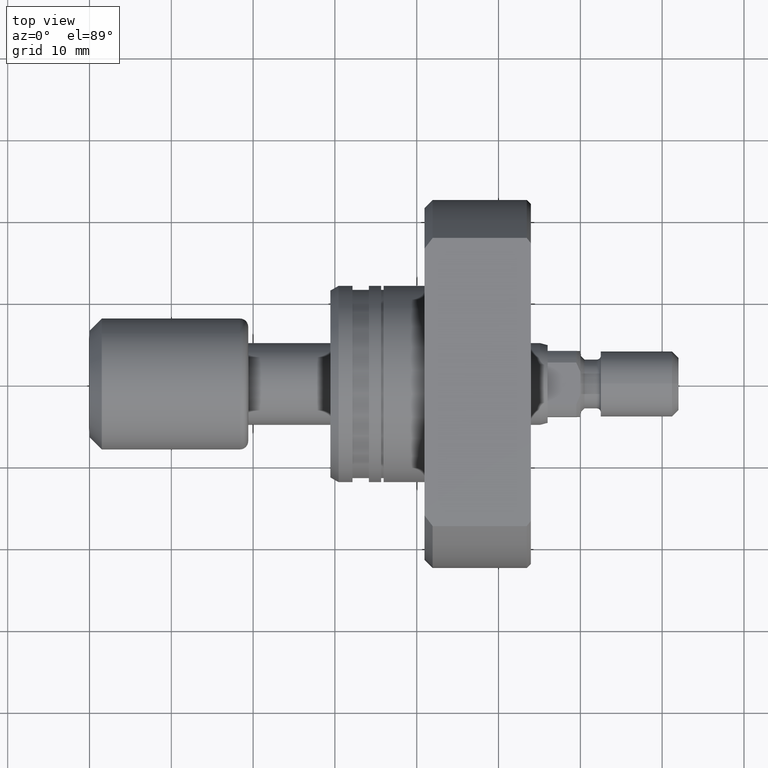
[diagram: clean part render]
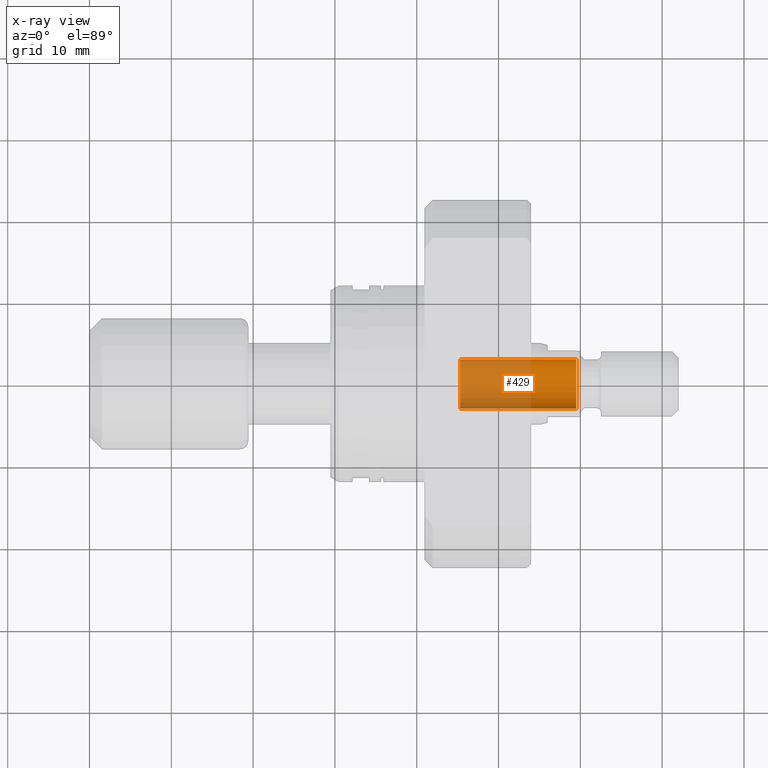
[diagram: x-ray — body ghosted, one internal face saturated and labeled with its STEP entity id]
A machine part, top view, then the same camera in x-ray: the body is ghosted and one INTERNAL B-rep face — a face not visible from any outside direction — is saturated and labeled: STEP entity #429.
In plain terms, the highlighted cylindrical surface (edge-blend (fillet) strip) has radius 3 mm, axis along (1, -0, 0).
Its self-contained STEP definition (entity closure, byte-faithful):
#28 = VERTEX_POINT ( 'NONE', #2942 ) ;
#81 = CARTESIAN_POINT ( 'NONE',  ( 59.50000000000010658, 2.999999999999305000, 0.000000000000000000 ) ) ;
#244 = DIRECTION ( 'NONE',  ( -1.619075244244862919E-14, -1.000000000000000000, 0.000000000000000000 ) ) ;
#429 = ADVANCED_FACE ( 'NONE', ( #559 ), #3112, .F. ) ;
#454 = CIRCLE ( 'NONE', #2458, 3.000000000000290878 ) ;
#471 = CARTESIAN_POINT ( 'NONE',  ( 59.50000000000005684, -9.860725556978780642E-13, 0.000000000000000000 ) ) ;
#523 = DIRECTION ( 'NONE',  ( 1.619075244244862919E-14, 1.000000000000000000, 0.000000000000000000 ) ) ;
#559 = FACE_OUTER_BOUND ( 'NONE', #832, .T. ) ;
#657 = EDGE_CURVE ( 'NONE', #2792, #2074, #912, .T. ) ;
#761 = DIRECTION ( 'NONE',  ( 1.000000000000000000, -1.657264799492230625E-14, -0.000000000000000000 ) ) ;
#832 = EDGE_LOOP ( 'NONE', ( #2711, #3320, #2135, #2734 ) ) ;
#912 = CIRCLE ( 'NONE', #2982, 3.000000000000290878 ) ;
#1342 = DIRECTION ( 'NONE',  ( 1.000000000000000000, -1.657264799492212008E-14, 0.000000000000000000 ) ) ;
#1609 = CARTESIAN_POINT ( 'NONE',  ( 45.29999999999998295, -7.507409541699801707E-13, 0.000000000000000000 ) ) ;
#1614 = AXIS2_PLACEMENT_3D ( 'NONE', #3056, #1683, #523 ) ;
#1683 = DIRECTION ( 'NONE',  ( 1.000000000000000000, -1.657264799492230625E-14, -0.000000000000000000 ) ) ;
#1689 = VECTOR ( 'NONE', #761, 1000.000000000000000 ) ;
#1698 = EDGE_CURVE ( 'NONE', #2792, #28, #3233, .T. ) ;
#2074 = VERTEX_POINT ( 'NONE', #3301 ) ;
#2135 = ORIENTED_EDGE ( 'NONE', *, *, #2624, .T. ) ;
#2144 = DIRECTION ( 'NONE',  ( 1.000000000000000000, -1.657264799492230625E-14, 0.000000000000000000 ) ) ;
#2155 = LINE ( 'NONE', #2962, #3161 ) ;
#2416 = DIRECTION ( 'NONE',  ( 1.000000000000000000, -1.657264799492230625E-14, -0.000000000000000000 ) ) ;
#2458 = AXIS2_PLACEMENT_3D ( 'NONE', #471, #1342, #244 ) ;
#2624 = EDGE_CURVE ( 'NONE', #28, #2949, #454, .T. ) ;
#2667 = CARTESIAN_POINT ( 'NONE',  ( 45.29999999999994031, -3.000000000001041833, 3.673940397442415842E-16 ) ) ;
#2711 = ORIENTED_EDGE ( 'NONE', *, *, #657, .F. ) ;
#2734 = ORIENTED_EDGE ( 'NONE', *, *, #3436, .F. ) ;
#2792 = VERTEX_POINT ( 'NONE', #3069 ) ;
#2942 = CARTESIAN_POINT ( 'NONE',  ( 59.50000000000001421, -3.000000000001276756, 3.673940397442559316E-16 ) ) ;
#2949 = VERTEX_POINT ( 'NONE', #81 ) ;
#2962 = CARTESIAN_POINT ( 'NONE',  ( 45.30000000000003268, 2.999999999999540368, 0.000000000000000000 ) ) ;
#2982 = AXIS2_PLACEMENT_3D ( 'NONE', #1609, #2144, #3579 ) ;
#3056 = CARTESIAN_POINT ( 'NONE',  ( 45.29999999999998295, -7.507409541699801707E-13, 0.000000000000000000 ) ) ;
#3069 = CARTESIAN_POINT ( 'NONE',  ( 45.29999999999994031, -3.000000000001041833, 3.673940397442415842E-16 ) ) ;
#3112 = CYLINDRICAL_SURFACE ( 'NONE', #1614, 3.000000000000290878 ) ;
#3161 = VECTOR ( 'NONE', #2416, 1000.000000000000000 ) ;
#3233 = LINE ( 'NONE', #2667, #1689 ) ;
#3301 = CARTESIAN_POINT ( 'NONE',  ( 45.30000000000003268, 2.999999999999540368, 0.000000000000000000 ) ) ;
#3320 = ORIENTED_EDGE ( 'NONE', *, *, #1698, .T. ) ;
#3436 = EDGE_CURVE ( 'NONE', #2074, #2949, #2155, .T. ) ;
#3579 = DIRECTION ( 'NONE',  ( 1.619075244244862919E-14, 1.000000000000000000, 0.000000000000000000 ) ) ;